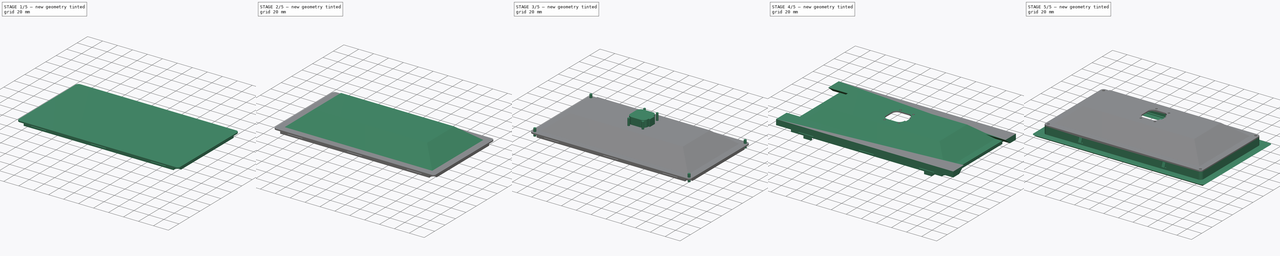
[diagram: build sequence overview — one tinted view per stage of 5, left to right]
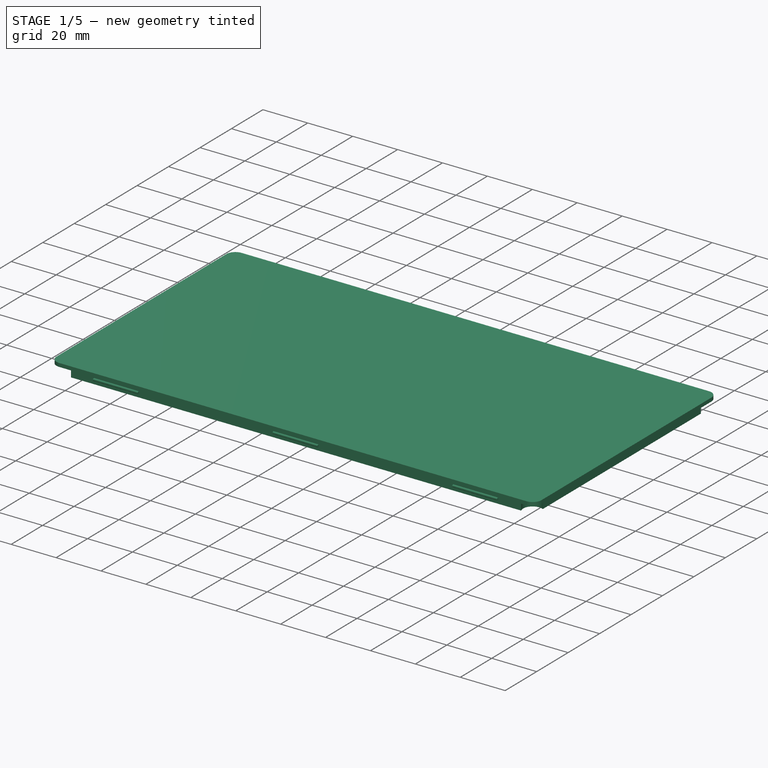
[diagram: stage 1 of 5 — iso view after this stage's code; geometry added in this stage tinted green]
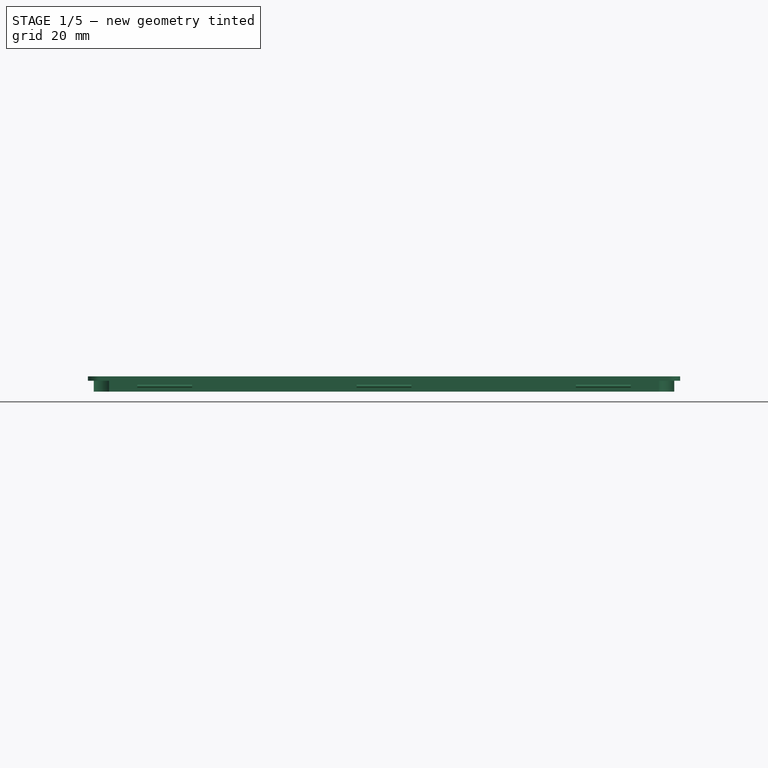
[diagram: stage 1 of 5 — front view after this stage's code; geometry added in this stage tinted green]
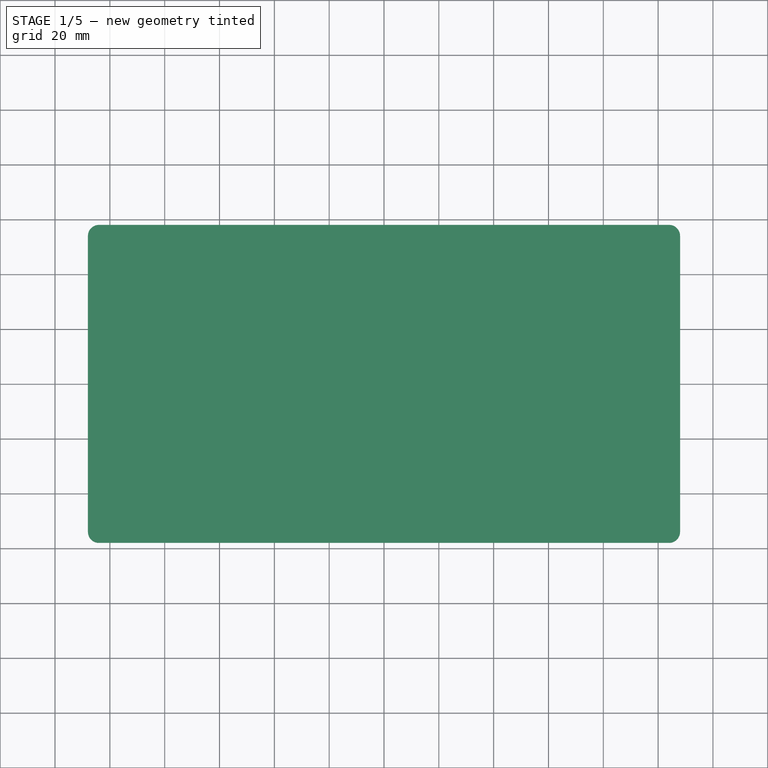
[diagram: stage 1 of 5 — top view after this stage's code; geometry added in this stage tinted green]
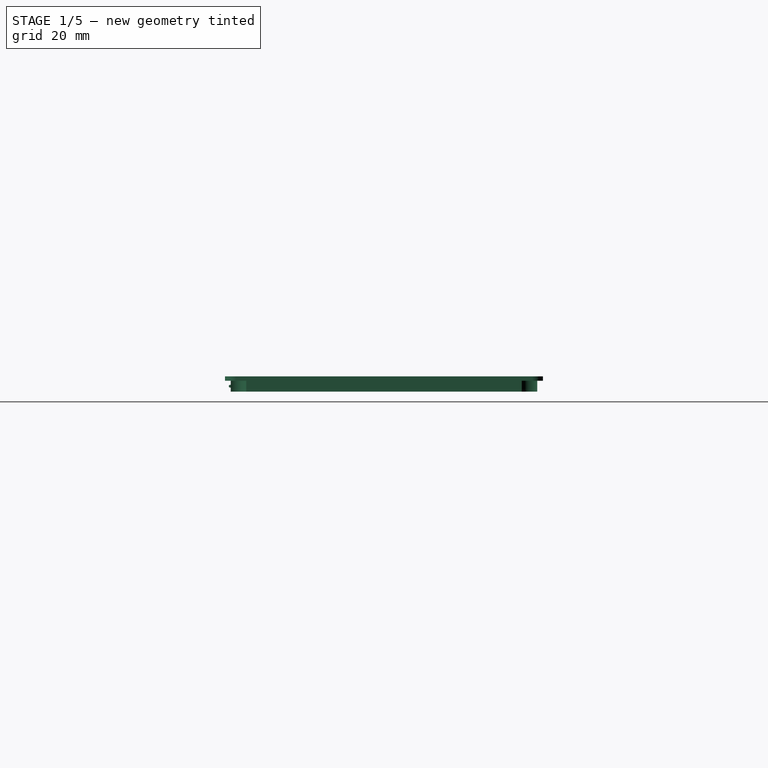
[diagram: stage 1 of 5 — right view after this stage's code; geometry added in this stage tinted green]
FCSTD DOCUMENT  (FreeCAD 0.16R6698 (Git))
Label: enclosure_back
License: All rights reserved
LicenseURL: http://en.wikipedia.org/wiki/All_rights_reserved
objects: Sketcher::SketchObject×9, PartDesign::Pad×8, Part::MultiFuse×4, Part::Chamfer×2, Part::FeaturePython×2, App::FeaturePython×2, PartDesign::Fillet×2, Part::Cut×2, Part::Feature×1, PartDesign::Pocket×1, Part::Cylinder×1, Part::Mirroring×1
note: 42 computed .brp shape members not serialized (recipe doc carries the construction recipe); baked Part::Feature solids carry a one-line shape summary decoded from their .brp

FEATURE [Part::Feature] Part__Feature  label="pcb"
  Placement = pos=(-23.86,3.5,-4.6) rot=(0,0,1;0rad)
  shape: bbox 87.31 x 61.33 x 37.48 mm, 5234 faces (baked)
FEATURE [Sketcher::SketchObject] Sketch
  sketch-geometry (8):
    g0: LineSegment StartX=-104 StartY=58 StartZ=0 EndX=104 EndY=58 EndZ=0
    g1: LineSegment StartX=108 StartY=54 StartZ=0 EndX=108 EndY=-54 EndZ=0
    g2: LineSegment StartX=104 StartY=-58 StartZ=0 EndX=-104 EndY=-58 EndZ=0
    g3: LineSegment StartX=-108 StartY=-54 StartZ=0 EndX=-108 EndY=54 EndZ=0
    g4: ArcOfCircle CenterX=104 CenterY=-54 CenterZ=0 NormalX=0 NormalY=0 NormalZ=1 Radius=4 StartAngle=4.71239 EndAngle=6.28319
    g5: ArcOfCircle CenterX=104 CenterY=54 CenterZ=0 NormalX=0 NormalY=0 NormalZ=1 Radius=4 StartAngle=0 EndAngle=1.5708
    g6: ArcOfCircle CenterX=-104 CenterY=54 CenterZ=0 NormalX=0 NormalY=0 NormalZ=1 Radius=4 StartAngle=1.5708 EndAngle=3.14159
    g7: ArcOfCircle CenterX=-104 CenterY=-54 CenterZ=0 NormalX=0 NormalY=0 NormalZ=1 Radius=4 StartAngle=3.14159 EndAngle=4.71239
  constraints (19):
    c: Horizontal(g0)
    c: Horizontal(g2)
    c: Vertical(g1)
    c: Vertical(g3)
    c: Tangent(g2,g4) = 1.5708
    c: Tangent(g1,g4) = 1.5708
    c: Tangent(g1,g5) = 1.5708
    c: Tangent(g0,g5) = 1.5708
    c: Tangent(g0,g6) = 1.5708
    c: Tangent(g3,g6) = 1.5708
    c: Tangent(g3,g7) = 1.5708
    c: Tangent(g2,g7) = 1.5708
    c: Equal(g7,g6)
    c: Equal(g6,g5)
    c: Symmetric(g3,g1,g-2)
    c: Symmetric(g2,g0,g-1)
    c: DistanceX(g3,g1) = 216
    c: DistanceY(g2,g0) = 116
    c: Radius(g6) = 4
FEATURE [PartDesign::Pad] Pad
  Length = 1.6
  Length2 = 100
  Sketch = -> Sketch
  Type = 0
FEATURE [Sketcher::SketchObject] Sketch003
  Placement = pos=(0,0,0) rot=(1,0,0;3.14159rad)
  sketch-geometry (16):
    g0: LineSegment StartX=-100.254 StartY=55.9 StartZ=0 EndX=100.254 EndY=55.9 EndZ=0
    g1: ArcOfCircle CenterX=104 CenterY=54 CenterZ=0 NormalX=0 NormalY=0 NormalZ=1 Radius=4.2 StartAngle=2.67216 EndAngle=5.18182
    g2: LineSegment StartX=105.9 StartY=50.2543 StartZ=0 EndX=105.9 EndY=-50.2543 EndZ=0
    g3: ArcOfCircle CenterX=104 CenterY=-54 CenterZ=0 NormalX=0 NormalY=0 NormalZ=1 Radius=4.2 StartAngle=1.10136 EndAngle=3.61103
    g4: LineSegment StartX=100.254 StartY=-55.9 StartZ=0 EndX=-100.254 EndY=-55.9 EndZ=0
    g5: ArcOfCircle CenterX=-104 CenterY=-54 CenterZ=0 NormalX=0 NormalY=0 NormalZ=1 Radius=4.2 StartAngle=5.81375 EndAngle=8.32341
    g6: LineSegment StartX=-105.9 StartY=-50.2543 StartZ=0 EndX=-105.9 EndY=50.2543 EndZ=0
    g7: ArcOfCircle CenterX=-104 CenterY=54 CenterZ=0 NormalX=0 NormalY=0 NormalZ=1 Radius=4.2 StartAngle=4.24296 EndAngle=6.75262
    g8: LineSegment StartX=-104.3 StartY=-48.2078 StartZ=0 EndX=-104.3 EndY=48.2078 EndZ=0
    g9: LineSegment StartX=-98.2078 StartY=54.3 StartZ=0 EndX=98.2078 EndY=54.3 EndZ=0
    g10: LineSegment StartX=104.3 StartY=48.2078 StartZ=0 EndX=104.3 EndY=-48.2078 EndZ=0
    g11: LineSegment StartX=98.2078 StartY=-54.3 StartZ=0 EndX=-98.2078 EndY=-54.3 EndZ=0
    g12: ArcOfCircle CenterX=-104 CenterY=-54 CenterZ=0 NormalX=0 NormalY=0 NormalZ=1 Radius=5.8 StartAngle=6.23144 EndAngle=7.90573
    g13: ArcOfCircle CenterX=104 CenterY=-54 CenterZ=0 NormalX=0 NormalY=0 NormalZ=1 Radius=5.8 StartAngle=1.51905 EndAngle=3.19334
    g14: ArcOfCircle CenterX=104 CenterY=54 CenterZ=0 NormalX=0 NormalY=0 NormalZ=1 Radius=5.8 StartAngle=3.08985 EndAngle=4.76414
    g15: ArcOfCircle CenterX=-104 CenterY=54 CenterZ=0 NormalX=0 NormalY=0 NormalZ=1 Radius=5.8 StartAngle=4.66064 EndAngle=6.33493
  constraints (46):
    c: Horizontal(g0)
    c: Coincident(g1,g2)
    c: Vertical(g2)
    c: Horizontal(g4)
    c: Coincident(g5,g6)
    c: Vertical(g6)
    c: Coincident(g7,g0)
    c: Symmetric(g7,g1,g-2)
    c: Symmetric(g1,g3,g-1)
    c: Symmetric(g5,g7,g-1)
    c: DistanceY(g5,g7) = 108
    c: Equal(g5,g7)
    c: Equal(g1,g3)
    c: Radius(g3) = 4.2
    c: DistanceX(g7,g1) = 208
    c: Coincident(g6,g7)
    c: Coincident(g2,g3)
    c: Coincident(g4,g5)
    c: Symmetric(g6,g1,g-2)
    c: Symmetric(g4,g0,g-1)
    c: DistanceX(g6,g1) = 211.8
    c: DistanceY(g4,g0) = 111.8
    c: Coincident(g0,g1)
    c: Coincident(g3,g4)
    c: Vertical(g8)
    c: Horizontal(g9)
    c: Vertical(g10)
    c: Horizontal(g11)
    c: Coincident(g12,g5)
    c: Coincident(g12,g11)
    c: Coincident(g8,g12)
    c: Coincident(g13,g3)
    c: Coincident(g13,g11)
    c: Coincident(g13,g10)
    c: Coincident(g14,g1)
    c: Coincident(g14,g9)
    c: Coincident(g14,g10)
    c: Coincident(g15,g7)
    c: Coincident(g15,g8)
    c: Coincident(g15,g9)
    c: DistanceX(g8,g10) = 208.6
    c: DistanceY(g11,g9) = 108.6
    c: Symmetric(g9,g11,g-1)
    c: Symmetric(g8,g10,g-2)
    c: Equal(g15,g14)
    c: Radius(g15) = 5.8
FEATURE [PartDesign::Pad] Pad002  label="seal_ring_pad"
  Length = 4
  Length2 = 100
  Placement = pos=(0,0,0) rot=(1,0,0;3.14159rad)
  Sketch = -> Sketch003
  Type = 0
FEATURE [Sketcher::SketchObject] Sketch009
  Placement = pos=(0,55.9,0) rot=(0,0.707107,-0.707107;3.14159rad)
  sketch-geometry (12):
    g0: LineSegment StartX=-90 StartY=2.5 StartZ=0 EndX=-70 EndY=2.5 EndZ=0
    g1: LineSegment StartX=-70 StartY=2.5 StartZ=0 EndX=-70 EndY=1.5 EndZ=0
    g2: LineSegment StartX=-70 StartY=1.5 StartZ=0 EndX=-90 EndY=1.5 EndZ=0
    g3: LineSegment StartX=-90 StartY=1.5 StartZ=0 EndX=-90 EndY=2.5 EndZ=0
    g4: LineSegment StartX=-10 StartY=2.5 StartZ=0 EndX=10 EndY=2.5 EndZ=0
    g5: LineSegment StartX=10 StartY=2.5 StartZ=0 EndX=10 EndY=1.5 EndZ=0
    g6: LineSegment StartX=10 StartY=1.5 StartZ=0 EndX=-10 EndY=1.5 EndZ=0
    g7: LineSegment StartX=-10 StartY=1.5 StartZ=0 EndX=-10 EndY=2.5 EndZ=0
    g8: LineSegment StartX=70 StartY=2.5 StartZ=0 EndX=90 EndY=2.5 EndZ=0
    g9: LineSegment StartX=90 StartY=2.5 StartZ=0 EndX=90 EndY=1.5 EndZ=0
    g10: LineSegment StartX=90 StartY=1.5 StartZ=0 EndX=70 EndY=1.5 EndZ=0
    g11: LineSegment StartX=70 StartY=1.5 StartZ=0 EndX=70 EndY=2.5 EndZ=0
  constraints (33):
    c: Coincident(g0,g1)
    c: Coincident(g1,g2)
    c: Coincident(g2,g3)
    c: Coincident(g3,g0)
    c: Horizontal(g0)
    c: Horizontal(g2)
    c: Vertical(g1)
    c: Vertical(g3)
    c: Coincident(g4,g5)
    c: Coincident(g5,g6)
    c: Coincident(g6,g7)
    c: Coincident(g7,g4)
    c: Horizontal(g4)
    c: Horizontal(g6)
    c: Vertical(g5)
    c: Vertical(g7)
    c: Coincident(g8,g9)
    c: Coincident(g9,g10)
    c: Coincident(g10,g11)
    c: Coincident(g11,g8)
    c: Horizontal(g8)
    c: Horizontal(g10)
    c: Vertical(g9)
    c: Vertical(g11)
    c: Equal(g8,g4)
    c: Equal(g4,g0)
    c: Equal(g1,g7)
    c: Equal(g7,g11)
    c: Symmetric(g8,g0,g-2)
    c: Symmetric(g4,g4,g-2)
    c: DistanceY(g3,g3) = 1
    c: DistanceX(g4,g4) = 20
    c: DistanceX(g2,g9) = 180
FEATURE [PartDesign::Pad] Pad007  label="attach_clips"
  Length = 0.7
  Length2 = 100
  Placement = pos=(0,55.9,0) rot=(0,0.707107,-0.707107;3.14159rad)
  Reversed = true
  Sketch = -> Sketch009
  Type = 0
FEATURE [PartDesign::Fillet] Fillet001
  Base = -> Pad007 [Edge16,Edge22,Edge4,Edge10,Edge34,Edge28]
  Placement = pos=(0,55.9,0) rot=(0,0.707107,-0.707107;3.14159rad)
  Radius = 0.4
FEATURE [Part::Mirroring] Part__Mirroring  label="attach_clips_mirror"
  Base = (0,0,0)
  Normal = (0,1,0)
  Source = -> Fillet001
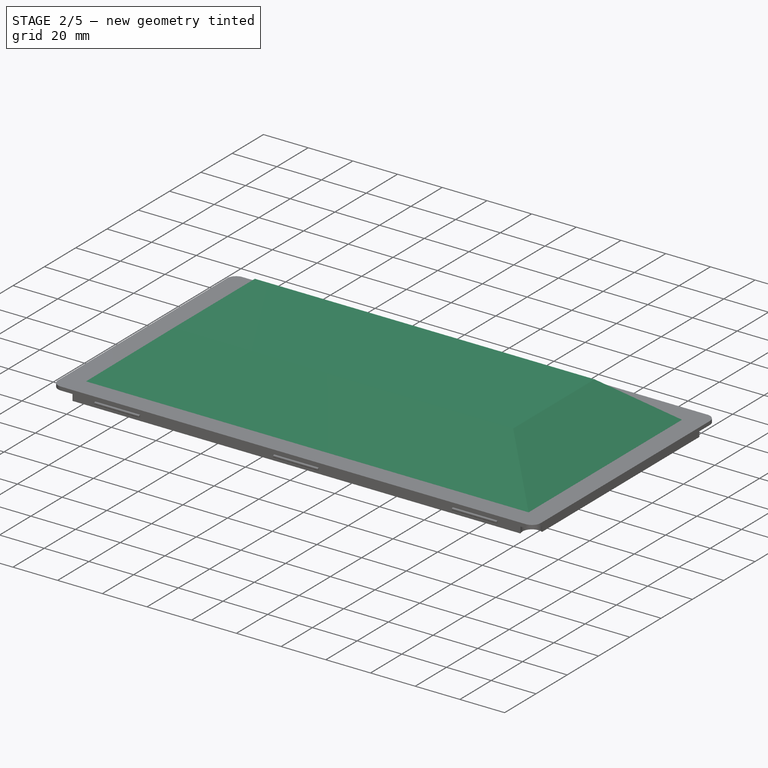
[diagram: stage 2 of 5 — iso view after this stage's code; geometry added in this stage tinted green]
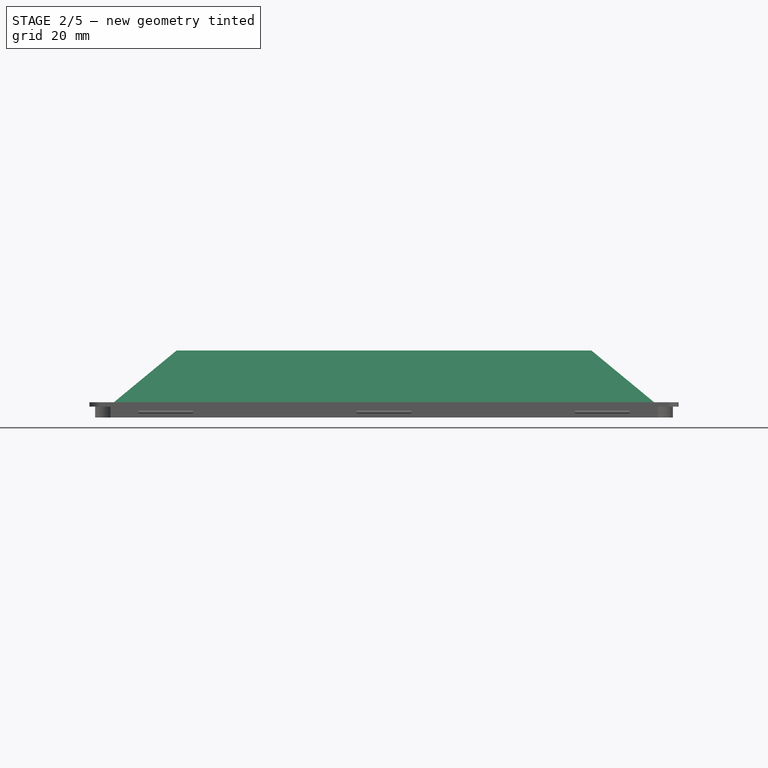
[diagram: stage 2 of 5 — front view after this stage's code; geometry added in this stage tinted green]
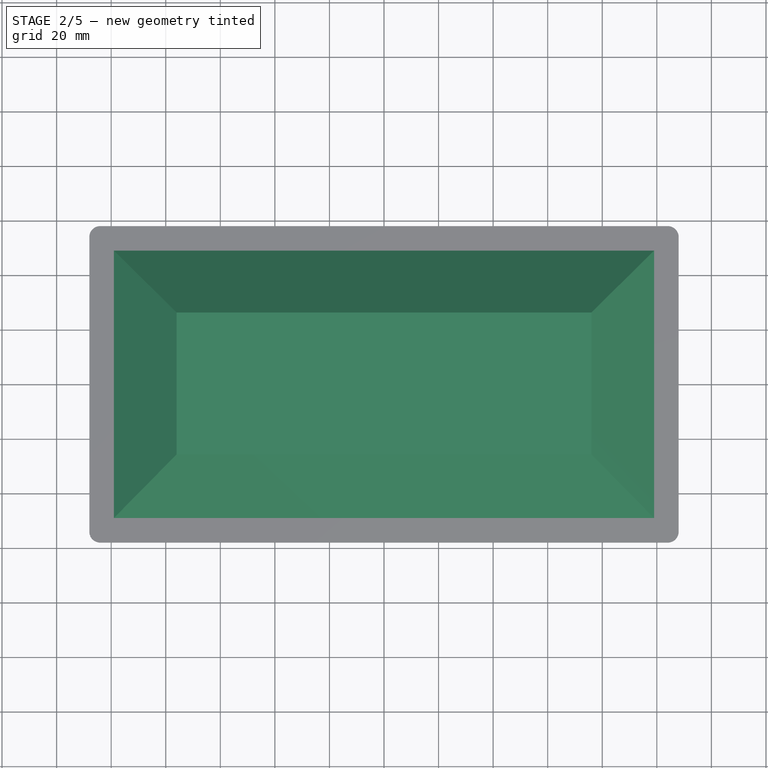
[diagram: stage 2 of 5 — top view after this stage's code; geometry added in this stage tinted green]
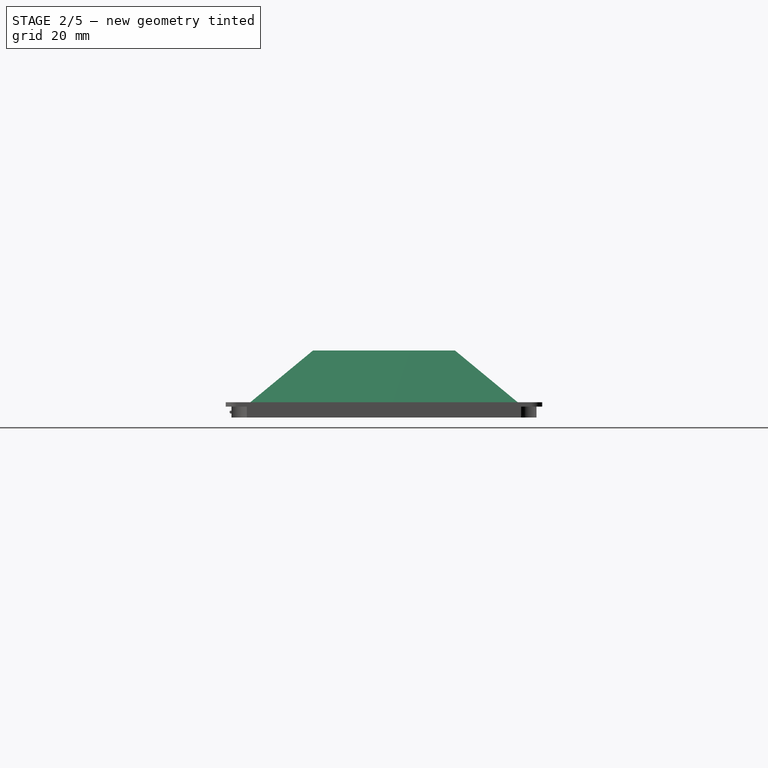
[diagram: stage 2 of 5 — right view after this stage's code; geometry added in this stage tinted green]
FEATURE [Sketcher::SketchObject] Sketch001
  Placement = pos=(0,0,1.6) rot=(0,0,1;0rad)
  Support = -> Pad [Face10]
  sketch-geometry (4):
    g0: LineSegment StartX=-99 StartY=49 StartZ=0 EndX=99 EndY=49 EndZ=0
    g1: LineSegment StartX=99 StartY=49 StartZ=0 EndX=99 EndY=-49 EndZ=0
    g2: LineSegment StartX=99 StartY=-49 StartZ=0 EndX=-99 EndY=-49 EndZ=0
    g3: LineSegment StartX=-99 StartY=-49 StartZ=0 EndX=-99 EndY=49 EndZ=0
  constraints (12):
    c: Coincident(g0,g1)
    c: Coincident(g1,g2)
    c: Coincident(g2,g3)
    c: Coincident(g3,g0)
    c: Horizontal(g0)
    c: Horizontal(g2)
    c: Vertical(g1)
    c: Vertical(g3)
    c: Symmetric(g1,g0,g-1)
    c: Symmetric(g0,g0,g-2)
    c: DistanceX(g0,g0) = 198
    c: DistanceY(g3,g3) = 98
FEATURE [PartDesign::Pad] Pad001
  Length = 19
  Length2 = 100
  Sketch = -> Sketch001
  Type = 0
FEATURE [Part::Chamfer] Chamfer
  Base = -> Pad001
  Edges = 4 edges: [Edge30 r1=18.99 r2=23,Edge33 r1=18.99 r2=23,Edge35 r1=18.99 r2=23,Edge36 r1=18.99 r2=23]
FEATURE [Sketcher::SketchObject] Sketch002
  Placement = pos=(0,0,0) rot=(1,0,0;3.14159rad)
  Support = -> Chamfer [Face19]
  sketch-geometry (4):
    g0: LineSegment StartX=-75 StartY=25 StartZ=0 EndX=75 EndY=25 EndZ=0
    g1: LineSegment StartX=75 StartY=25 StartZ=0 EndX=75 EndY=-25 EndZ=0
    g2: LineSegment StartX=75 StartY=-25 StartZ=0 EndX=-75 EndY=-25 EndZ=0
    g3: LineSegment StartX=-75 StartY=-25 StartZ=0 EndX=-75 EndY=25 EndZ=0
  constraints (12):
    c: Coincident(g0,g1)
    c: Coincident(g1,g2)
    c: Coincident(g2,g3)
    c: Coincident(g3,g0)
    c: Horizontal(g0)
    c: Horizontal(g2)
    c: Vertical(g1)
    c: Vertical(g3)
    c: Symmetric(g1,g2,g-2)
    c: Symmetric(g2,g0,g-1)
    c: DistanceX(g0,g0) = 150
    c: DistanceY(g3,g3) = 50
FEATURE [PartDesign::Pocket] Pocket
  Length = 19
  Sketch = -> Sketch002
  Type = 0
FEATURE [Part::Chamfer] Chamfer001
  Base = -> Pocket
  Edges = 4 edges: [Edge45 r1=23 r2=18.99,Edge46 r1=23 r2=18.99,Edge47 r1=23 r2=18.99,Edge48 r1=23 r2=18.99]
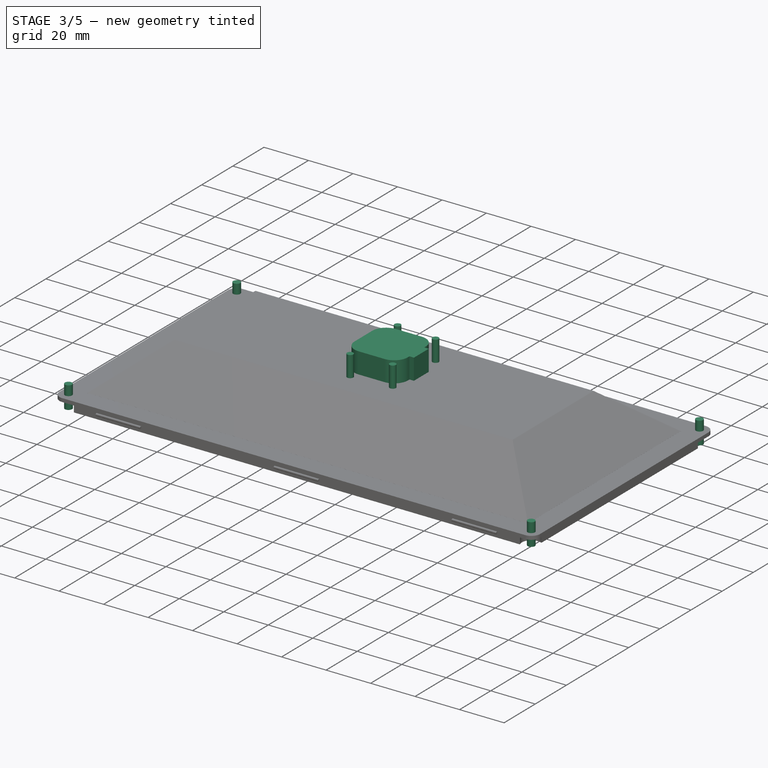
[diagram: stage 3 of 5 — iso view after this stage's code; geometry added in this stage tinted green]
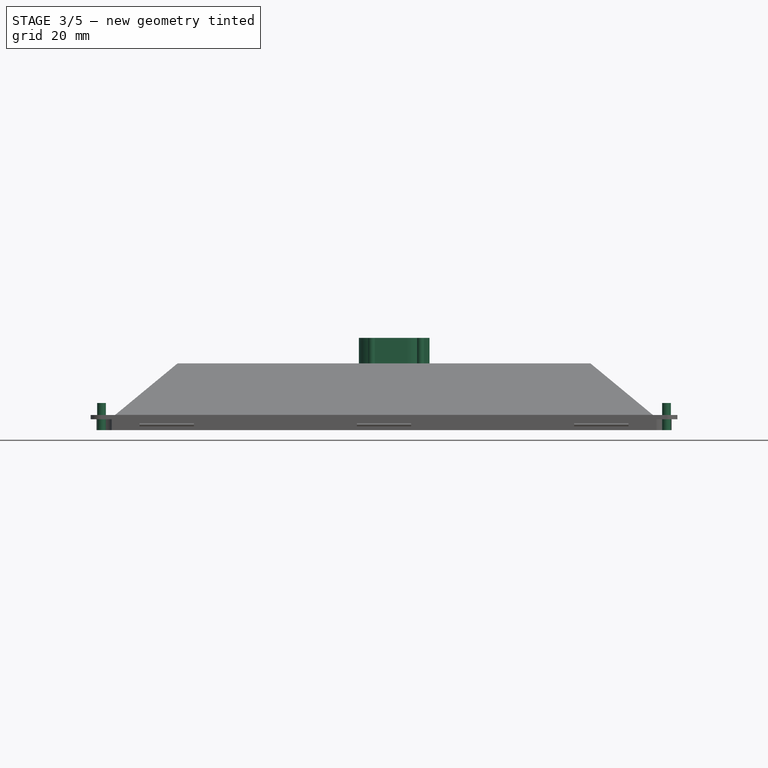
[diagram: stage 3 of 5 — front view after this stage's code; geometry added in this stage tinted green]
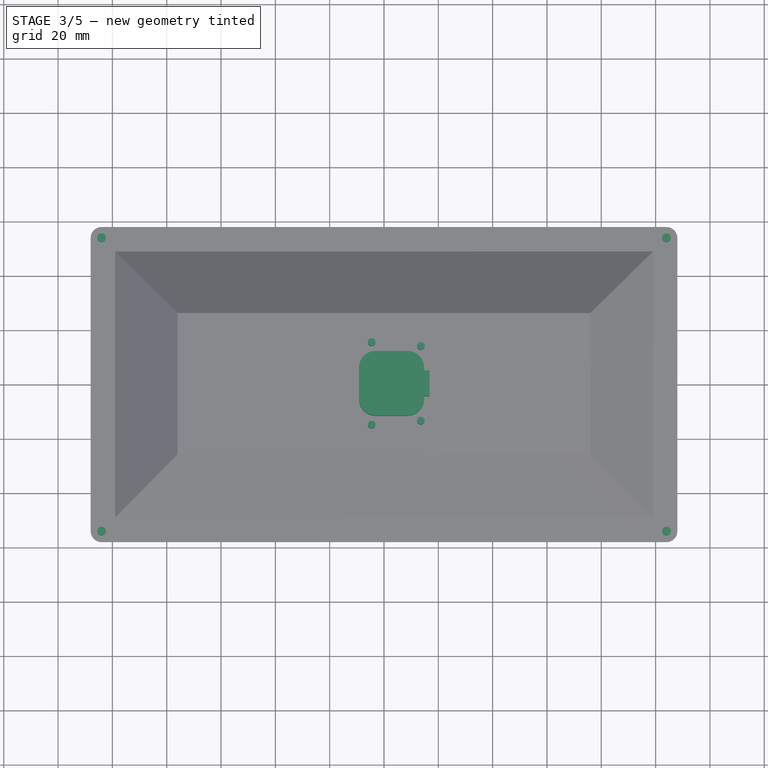
[diagram: stage 3 of 5 — top view after this stage's code; geometry added in this stage tinted green]
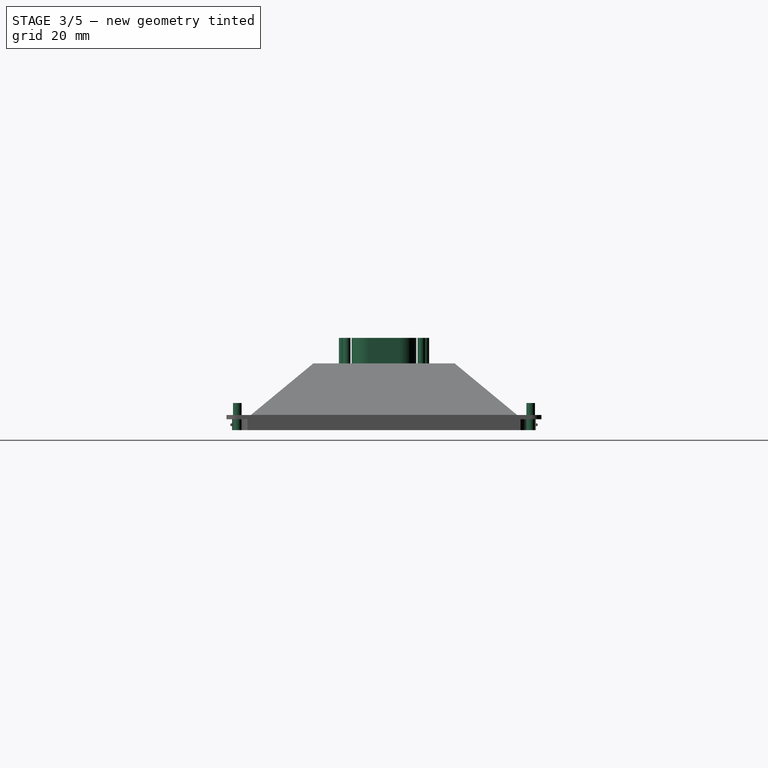
[diagram: stage 3 of 5 — right view after this stage's code; geometry added in this stage tinted green]
FEATURE [Part::Cylinder] Cylinder  label="bolt_hole"
  Angle = 360
  Height = 10
  Placement = pos=(104,54,-4) rot=(0,0,1;0rad)
  Radius = 1.6
FEATURE [Part::FeaturePython] Array  label="bolt_holes"  # Draft array (typed FeaturePython)
  Angle = 360
  ArrayType = 0
  Axis = (0,0,1)
  Base = -> Cylinder
  Center = (0,0,0)
  Fuse = false
  IntervalAxis = (0,0,0)
  IntervalX = (-208,0,0)
  IntervalY = (0,-108,0)
  IntervalZ = (0,0,0)
  NumberPolar = 1
  NumberX = 2
  NumberY = 2
  NumberZ = 1
FEATURE [Sketcher::SketchObject] Sketch005
  sketch-geometry (16):
    g0: LineSegment StartX=-3.03489 StartY=11.9 StartZ=0 EndX=8.56511 EndY=11.9 EndZ=0
    g1: LineSegment StartX=8.56511 StartY=-11.9 StartZ=0 EndX=-3.03489 EndY=-11.9 EndZ=0
    g2: LineSegment StartX=-9.23489 StartY=-5.7 StartZ=0 EndX=-9.23489 EndY=5.7 EndZ=0
    g3: ArcOfCircle CenterX=8.56511 CenterY=-5.7 CenterZ=0 NormalX=0 NormalY=0 NormalZ=1 Radius=6.2 StartAngle=4.71239 EndAngle=6.28319
    g4: ArcOfCircle CenterX=-3.03489 CenterY=-5.7 CenterZ=0 NormalX=0 NormalY=0 NormalZ=1 Radius=6.2 StartAngle=3.14159 EndAngle=4.71239
    g5: ArcOfCircle CenterX=-3.03489 CenterY=5.7 CenterZ=0 NormalX=0 NormalY=0 NormalZ=1 Radius=6.2 StartAngle=1.5708 EndAngle=3.14159
    g6: ArcOfCircle CenterX=8.56511 CenterY=5.7 CenterZ=0 NormalX=0 NormalY=0 NormalZ=1 Radius=6.2 StartAngle=0 EndAngle=1.5708
    g7: LineSegment StartX=14.7651 StartY=5.7 StartZ=0 EndX=14.7651 EndY=4.75 EndZ=0
    g8: LineSegment StartX=14.7651 StartY=4.75 StartZ=0 EndX=16.7651 EndY=4.75 EndZ=0
    g9: LineSegment StartX=16.7651 StartY=4.75 StartZ=0 EndX=16.7651 EndY=-4.75 EndZ=0
    g10: LineSegment StartX=16.7651 StartY=-4.75 StartZ=0 EndX=14.7651 EndY=-4.75 EndZ=0
    g11: LineSegment StartX=14.7651 StartY=-4.75 StartZ=0 EndX=14.7651 EndY=-5.7 EndZ=0
    g12: Circle CenterX=-4.54666 CenterY=15.2227 CenterZ=0 NormalX=0 NormalY=0 NormalZ=1 Radius=1.4
    g13: Circle CenterX=13.5465 CenterY=13.751 CenterZ=0 NormalX=0 NormalY=0 NormalZ=1 Radius=1.4
    g14: Circle CenterX=13.5465 CenterY=-13.751 CenterZ=0 NormalX=0 NormalY=0 NormalZ=1 Radius=1.4
    g15: Circle CenterX=-4.54666 CenterY=-15.2227 CenterZ=0 NormalX=0 NormalY=0 NormalZ=1 Radius=1.4
  constraints (39):
    c: Horizontal(g0)
    c: Horizontal(g1)
    c: Vertical(g2)
    c: Tangent(g1,g3) = 1.5708
    c: Tangent(g1,g4) = 1.5708
    c: Tangent(g2,g4) = 1.5708
    c: Tangent(g2,g5) = 1.5708
    c: Tangent(g0,g5) = 1.5708
    c: Tangent(g0,g6) = 1.5708
    c: Tangent(g6,g7) = 1.5708
    c: Coincident(g7,g8)
    c: Horizontal(g8)
    c: Perpendicular(g8,g9) = 4.71239
    c: Coincident(g9,g10)
    c: Horizontal(g10)
    c: Coincident(g10,g11)
    c: Coincident(g11,g3)
    c: Vertical(g11)
    c: Tangent(g3,g11)
    c: Symmetric(g3,g6,g-1)
    c: Symmetric(g5,g4,g-1)
    c: Vertical(g7)
    c: Equal(g3,g4)
    c: Symmetric(g8,g9,g-1)
    c: DistanceY(g9,g9) = 9.5
    c: DistanceX(g2,g6) = 24
    c: DistanceY(g1,g0) = 23.8
    c: Radius(g6) = 6.2
    c: DistanceX(g10,g10) = 2
    c: Equal(g15,g14)
    c: Equal(g14,g13)
    c: Equal(g13,g12)
    c: Symmetric(g12,g15,g-1)
    c: Symmetric(g14,g13,g-1)
    c: Radius(g13) = 1.4
    c: DistanceX(g12,g13) = 18.0932
    c: DistanceX(g2,g12) = 4.68823
    c: DistanceY(g15,g12) = 30.4455
    c: DistanceY(g14,g13) = 27.502
FEATURE [PartDesign::Pad] Pad003  label="ampseal_hole"
  Length = 30
  Length2 = 100
  Sketch = -> Sketch005
  Type = 0
FEATURE [Part::MultiFuse] Fusion  label="connector_&_screw_holes"
  Shapes = -> [Pad003,Array]
FEATURE [Part::MultiFuse] Fusion003
  Shapes = -> [Fillet001,Part__Mirroring,Chamfer001,Pad002]
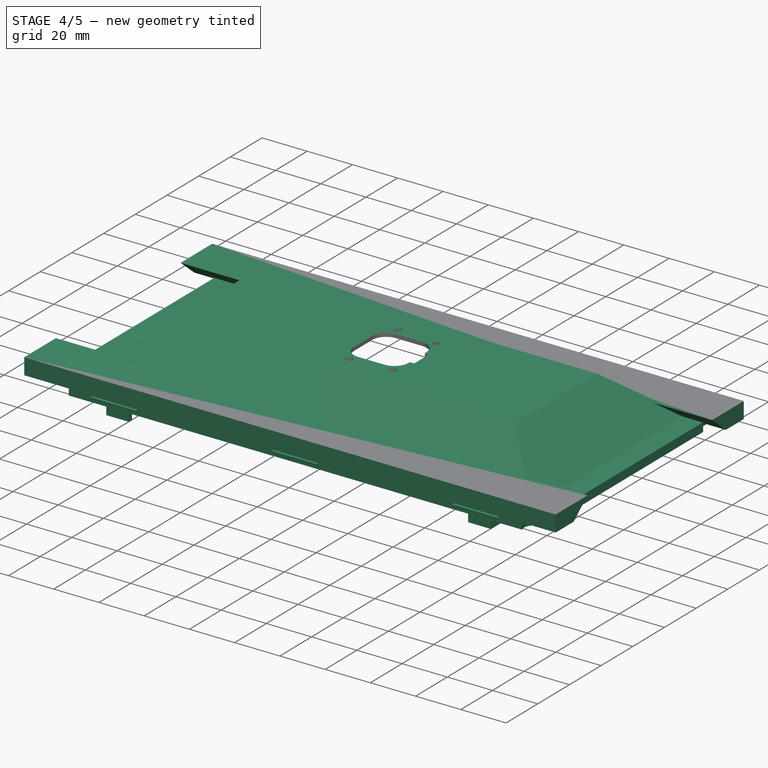
[diagram: stage 4 of 5 — iso view after this stage's code; geometry added in this stage tinted green]
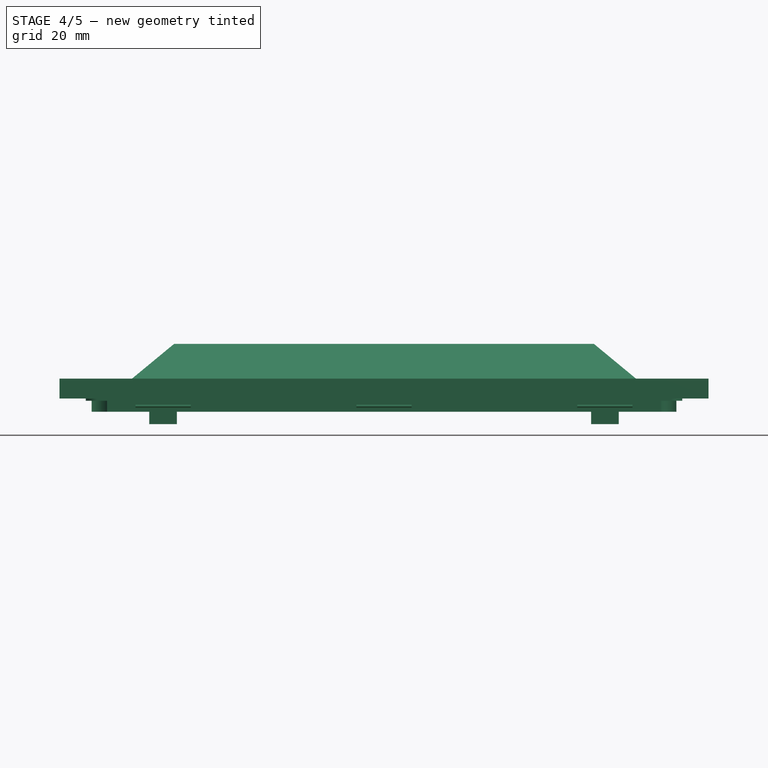
[diagram: stage 4 of 5 — front view after this stage's code; geometry added in this stage tinted green]
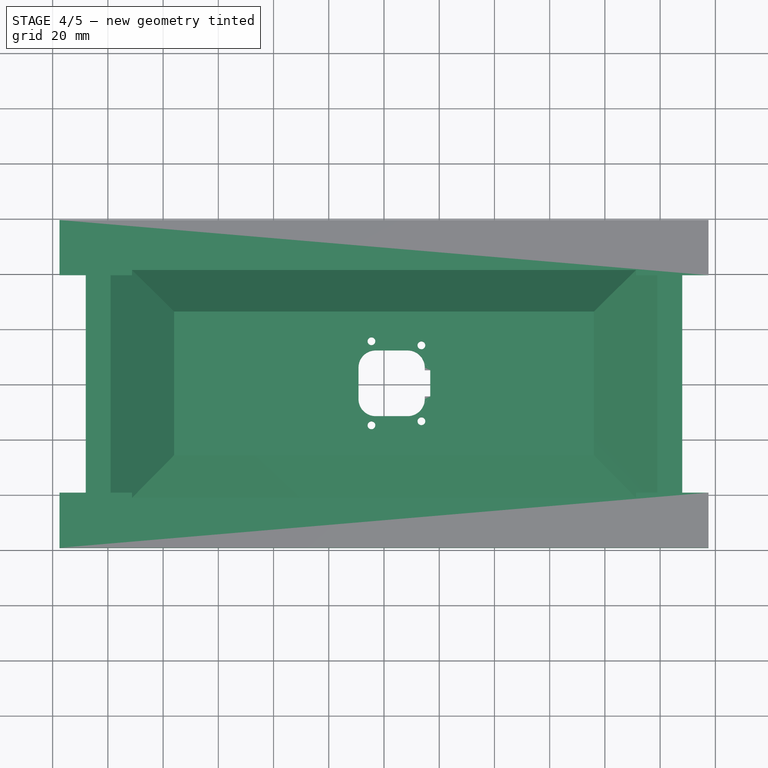
[diagram: stage 4 of 5 — top view after this stage's code; geometry added in this stage tinted green]
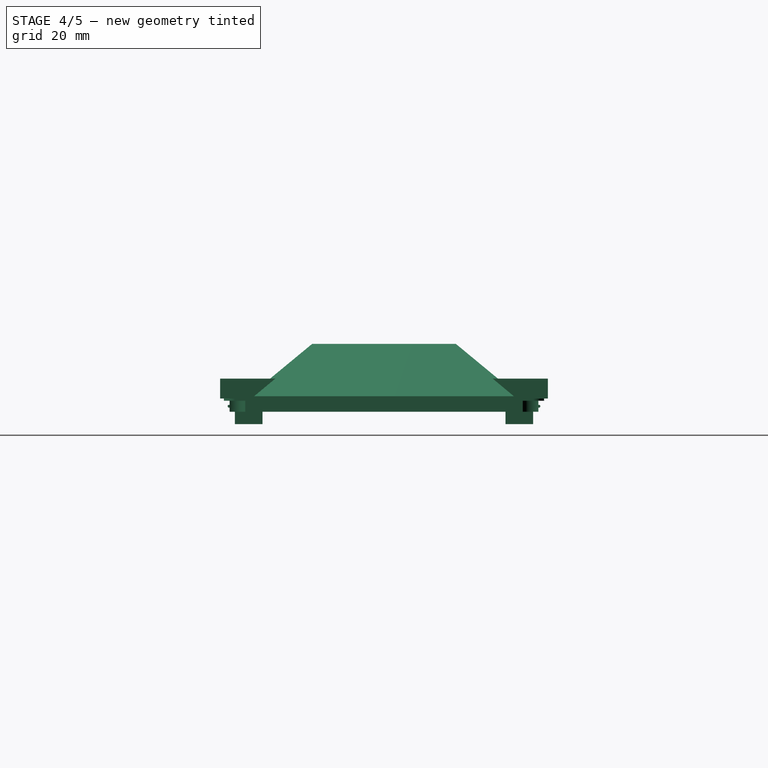
[diagram: stage 4 of 5 — right view after this stage's code; geometry added in this stage tinted green]
FEATURE [App::FeaturePython] circularEdgeConstraint01  label="circularEdgeConstraint01__enclosure_front_01"  # a2plus constraint (typed FeaturePython)
  Object1 = Cut
  Object2 = enclosure_front_01
  SubElement1 = Edge57
  SubElement2 = Edge71
  Type = circularEdge
  directionConstraint = 0
  lockRotation = false
  offset = 0
FEATURE [App::FeaturePython] circularEdgeConstraint01_mirror  label="circularEdgeConstraint01__Cut"  # a2plus constraint (typed FeaturePython)
  Object1 = Cut
  Object2 = enclosure_front_01
  SubElement1 = Edge57
  SubElement2 = Edge71
  Type = circularEdge
  directionConstraint = 0
  lockRotation = false
  offset = 0
FEATURE [Sketcher::SketchObject] Sketch006
  Placement = pos=(0,0,-16.5) rot=(0,0,1;0rad)
  sketch-geometry (24):
    g0: LineSegment StartX=-75 StartY=52 StartZ=0 EndX=-75 EndY=54 EndZ=0
    g1: LineSegment StartX=-75 StartY=54 StartZ=0 EndX=-85 EndY=54 EndZ=0
    g2: LineSegment StartX=-85 StartY=54 StartZ=0 EndX=-85 EndY=44 EndZ=0
    g3: LineSegment StartX=-85 StartY=44 StartZ=0 EndX=-83 EndY=44 EndZ=0
    g4: LineSegment StartX=-83 StartY=44 StartZ=0 EndX=-83 EndY=52.5 EndZ=0
    g5: LineSegment StartX=-83 StartY=52.5 StartZ=0 EndX=-75 EndY=52 EndZ=0
    g6: LineSegment StartX=75 StartY=52 StartZ=0 EndX=75 EndY=54 EndZ=0
    g7: LineSegment StartX=75 StartY=54 StartZ=0 EndX=85 EndY=54 EndZ=0
    g8: LineSegment StartX=85 StartY=54 StartZ=0 EndX=85 EndY=44 EndZ=0
    g9: LineSegment StartX=85 StartY=44 StartZ=0 EndX=83 EndY=44 EndZ=0
    g10: LineSegment StartX=83 StartY=44 StartZ=0 EndX=83 EndY=52.5 EndZ=0
    g11: LineSegment StartX=83 StartY=52.5 StartZ=0 EndX=75 EndY=52 EndZ=0
    g12: LineSegment StartX=-75 StartY=-52 StartZ=0 EndX=-75 EndY=-54 EndZ=0
    g13: LineSegment StartX=-75 StartY=-54 StartZ=0 EndX=-85 EndY=-54 EndZ=0
    g14: LineSegment StartX=-85 StartY=-54 StartZ=0 EndX=-85 EndY=-44 EndZ=0
    g15: LineSegment StartX=-85 StartY=-44 StartZ=0 EndX=-83 EndY=-44 EndZ=0
    g16: LineSegment StartX=-83 StartY=-44 StartZ=0 EndX=-83 EndY=-52.5 EndZ=0
    g17: LineSegment StartX=-83 StartY=-52.5 StartZ=0 EndX=-75 EndY=-52 EndZ=0
    g18: LineSegment StartX=75 StartY=-52 StartZ=0 EndX=75 EndY=-54 EndZ=0
    g19: LineSegment StartX=75 StartY=-54 StartZ=0 EndX=85 EndY=-54 EndZ=0
    g20: LineSegment StartX=85 StartY=-54 StartZ=0 EndX=85 EndY=-44 EndZ=0
    g21: LineSegment StartX=85 StartY=-44 StartZ=0 EndX=83 EndY=-44 EndZ=0
    g22: LineSegment StartX=83 StartY=-44 StartZ=0 EndX=83 EndY=-52.5 EndZ=0
    g23: LineSegment StartX=83 StartY=-52.5 StartZ=0 EndX=75 EndY=-52 EndZ=0
  constraints (61):
    c: Vertical(g0)
    c: Coincident(g0,g1)
    c: Horizontal(g1)
    c: Coincident(g1,g2)
    c: Vertical(g2)
    c: Coincident(g2,g3)
    c: Horizontal(g3)
    c: Coincident(g3,g4)
    c: Coincident(g4,g5)
    c: Coincident(g5,g0)
    c: DistanceY(g0,g0) = 2
    c: DistanceX(g3,g3) = 2
    c: DistanceY(g2,g2) = 10
    c: DistanceX(g1,g1) = 10
    c: Vertical(g6)
    c: Coincident(g6,g7)
    c: Horizontal(g7)
    c: Coincident(g7,g8)
    c: Vertical(g8)
    c: Coincident(g8,g9)
    c: Horizontal(g9)
    c: Coincident(g9,g10)
    c: Coincident(g10,g11)
    c: Coincident(g11,g6)
    c: DistanceX(g9,g9) = 2
    c: DistanceY(g6,g6) = 2
    c: DistanceX(g7,g7) = 10
    c: DistanceY(g8,g8) = 10
    c: Vertical(g12)
    c: Coincident(g12,g13)
    c: Horizontal(g13)
    c: Coincident(g13,g14)
    c: Vertical(g14)
    c: Coincident(g14,g15)
    c: Horizontal(g15)
    c: Coincident(g15,g16)
    c: Coincident(g16,g17)
    c: Coincident(g17,g12)
    c: Vertical(g18)
    c: Coincident(g18,g19)
    c: Horizontal(g19)
    c: Coincident(g19,g20)
    c: Vertical(g20)
    c: Coincident(g20,g21)
    c: Horizontal(g21)
    c: Coincident(g21,g22)
    c: Coincident(g22,g23)
    c: Coincident(g23,g18)
    c: DistanceX(g15,g15) = 2
    c: DistanceY(g12,g12) = 2
    c: DistanceX(g13,g13) = 10
    c: DistanceY(g14,g14) = 10
    c: DistanceY(g18,g18) = 2
    c: DistanceX(g19,g19) = 10
    c: DistanceY(g20,g20) = 10
    c: DistanceX(g21,g21) = 2
    c: Symmetric(g8,g20,g-1)
    c: DistanceX(g15,g21) = 166
    c: DistanceY(g12,g0) = 104
    c: Symmetric(g18,g12,g-2)
    c: Symmetric(g15,g3,g-1)
FEATURE [PartDesign::Pad] Pad004
  Length = 15
  Length2 = 100
  Placement = pos=(0,0,-16.5) rot=(0,0,1;0rad)
  Sketch = -> Sketch006
  Type = 0
FEATURE [Sketcher::SketchObject] Sketch007
  Placement = pos=(0,0,-13) rot=(1,0,0;3.14159rad)
  sketch-geometry (12):
    g0: LineSegment StartX=-75 StartY=52.5 StartZ=0 EndX=-83 EndY=52.5 EndZ=0
    g1: LineSegment StartX=-83 StartY=52.5 StartZ=0 EndX=-83 EndY=44.5 EndZ=0
    g2: LineSegment StartX=-83 StartY=44.5 StartZ=0 EndX=-75 EndY=52.5 EndZ=0
    g3: LineSegment StartX=-83 StartY=-52.5 StartZ=0 EndX=-83 EndY=-44.5 EndZ=0
    g4: LineSegment StartX=-83 StartY=-44.5 StartZ=0 EndX=-75 EndY=-52.5 EndZ=0
    g5: LineSegment StartX=-75 StartY=-52.5 StartZ=0 EndX=-83 EndY=-52.5 EndZ=0
    g6: LineSegment StartX=75 StartY=-52.5 StartZ=0 EndX=83 EndY=-52.5 EndZ=0
    g7: LineSegment StartX=83 StartY=-52.5 StartZ=0 EndX=83 EndY=-44.5 EndZ=0
    g8: LineSegment StartX=83 StartY=-44.5 StartZ=0 EndX=75 EndY=-52.5 EndZ=0
    g9: LineSegment StartX=75 StartY=52.5 StartZ=0 EndX=83 EndY=44.5 EndZ=0
    g10: LineSegment StartX=83 StartY=44.5 StartZ=0 EndX=83 EndY=52.5 EndZ=0
    g11: LineSegment StartX=83 StartY=52.5 StartZ=0 EndX=75 EndY=52.5 EndZ=0
  constraints (14):
    c: Coincident(g0,g1)
    c: Coincident(g1,g2)
    c: Coincident(g2,g0)
    c: Coincident(g3,g4)
    c: Coincident(g4,g5)
    c: Coincident(g5,g3)
    c: Horizontal(g6)
    c: Coincident(g6,g7)
    c: Vertical(g7)
    c: Coincident(g7,g8)
    c: Coincident(g8,g6)
    c: Coincident(g9,g10)
    c: Coincident(g10,g11)
    c: Coincident(g11,g9)
FEATURE [PartDesign::Pad] Pad005
  Length = 2
  Length2 = 100
  Placement = pos=(0,0,-13) rot=(1,0,0;3.14159rad)
  Reversed = true
  Sketch = -> Sketch007
  Type = 0
FEATURE [Sketcher::SketchObject] Sketch008
  Placement = pos=(0,0,0) rot=(0.57735,0.57735,0.57735;2.0944rad)
  sketch-geometry (8):
    g0: LineSegment StartX=-59.3683 StartY=-7.20358 StartZ=0 EndX=-48.0323 EndY=-7.20358 EndZ=0
    g1: LineSegment StartX=-48.0323 StartY=-7.20358 StartZ=0 EndX=-39.374 EndY=0 EndZ=0
    g2: LineSegment StartX=-39.374 StartY=0 StartZ=0 EndX=-59.3683 EndY=0 EndZ=0
    g3: LineSegment StartX=-59.3683 StartY=0 StartZ=0 EndX=-59.3683 EndY=-7.20358 EndZ=0
    g4: LineSegment StartX=59.3683 StartY=-7.20358 StartZ=0 EndX=48.0323 EndY=-7.20358 EndZ=0
    g5: LineSegment StartX=48.0323 StartY=-7.20358 StartZ=0 EndX=39.374 EndY=0 EndZ=0
    g6: LineSegment StartX=39.374 StartY=0 StartZ=0 EndX=59.3683 EndY=0 EndZ=0
    g7: LineSegment StartX=59.3683 StartY=0 StartZ=0 EndX=59.3683 EndY=-7.20358 EndZ=0
  constraints (15):
    c: Horizontal(g0)
    c: Coincident(g0,g1)
    c: PointOnObject(g1,g-1)
    c: Coincident(g1,g2)
    c: Horizontal(g2)
    c: Coincident(g2,g3)
    c: Coincident(g3,g0)
    c: Vertical(g3)
    c: Horizontal(g4)
    c: Coincident(g4,g5)
    c: Coincident(g5,g6)
    c: Horizontal(g6)
    c: Coincident(g6,g7)
    c: Coincident(g7,g4)
    c: Vertical(g7)
FEATURE [PartDesign::Pad] Pad006  label="dspl_holder_cut"
  Length = 235
  Length2 = 100
  Midplane = true
  Placement = pos=(0,0,0) rot=(0.57735,0.57735,0.57735;2.0944rad)
  Sketch = -> Sketch008
  Type = 0
FEATURE [Part::Cut] Cut
  Base = -> Fusion003
  Placement = pos=(0,0,-8) rot=(0,0,1;0rad)
  Tool = -> Fusion
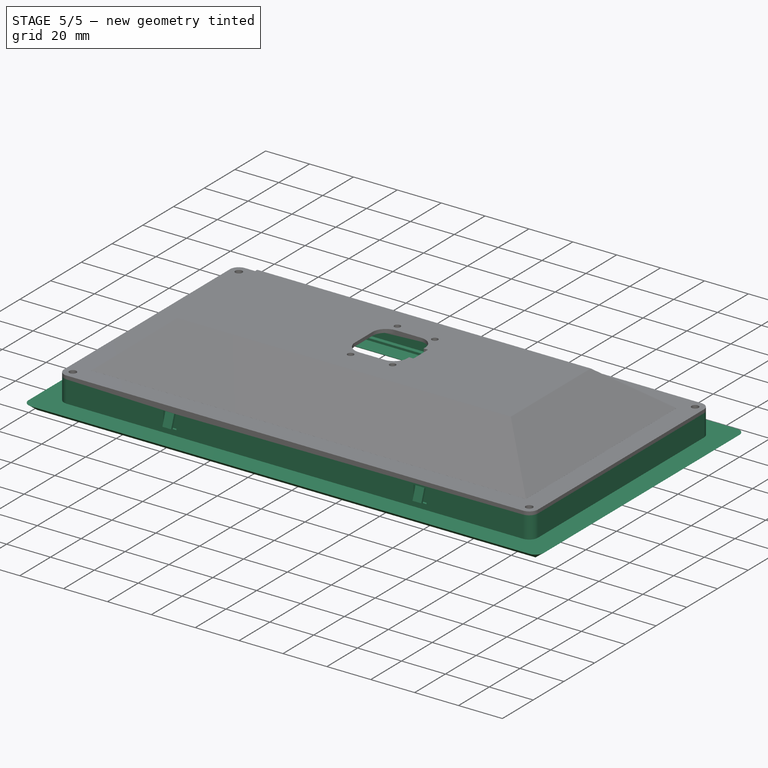
[diagram: stage 5 of 5 — iso view after this stage's code; geometry added in this stage tinted green]
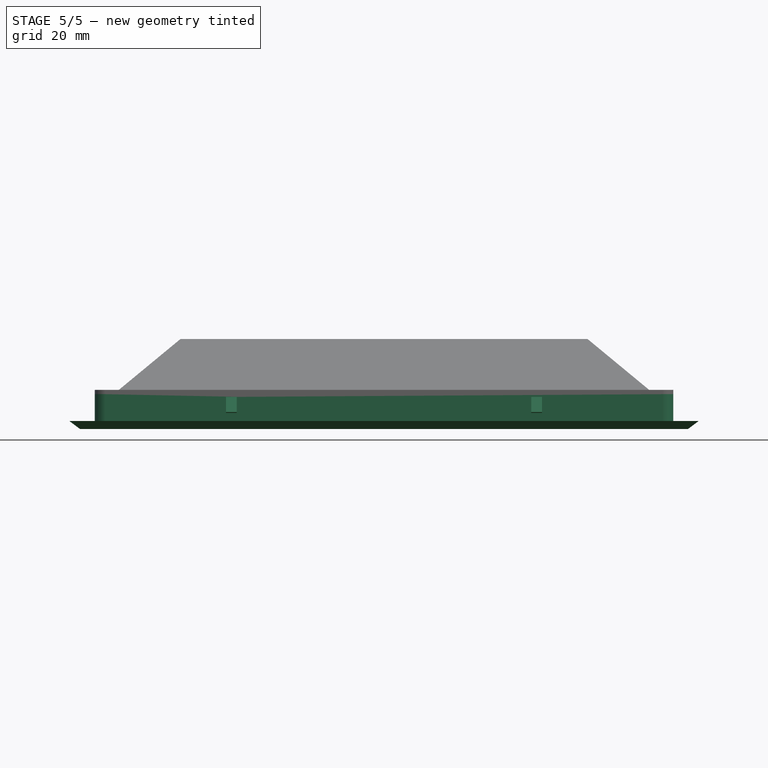
[diagram: stage 5 of 5 — front view after this stage's code; geometry added in this stage tinted green]
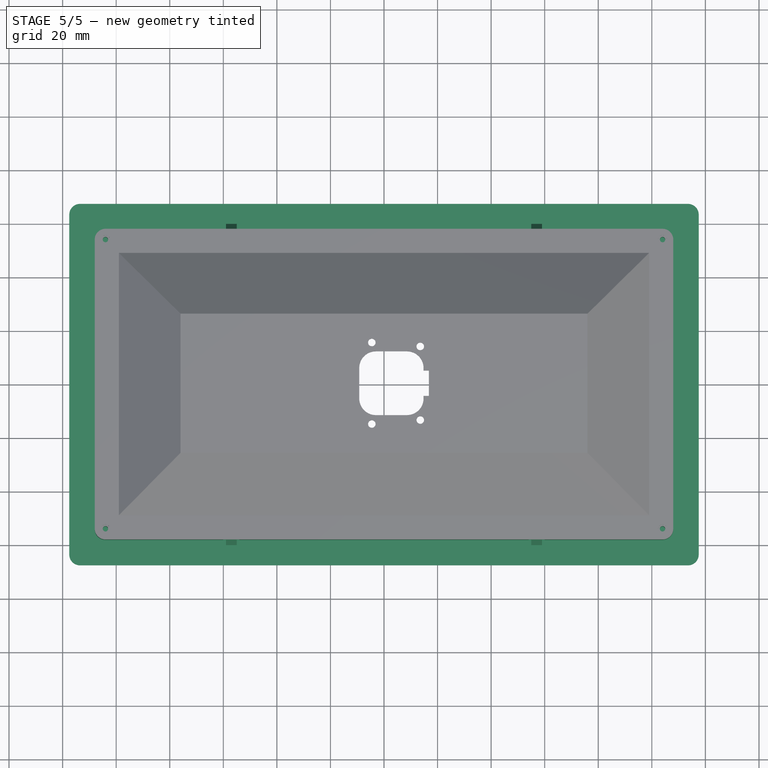
[diagram: stage 5 of 5 — top view after this stage's code; geometry added in this stage tinted green]
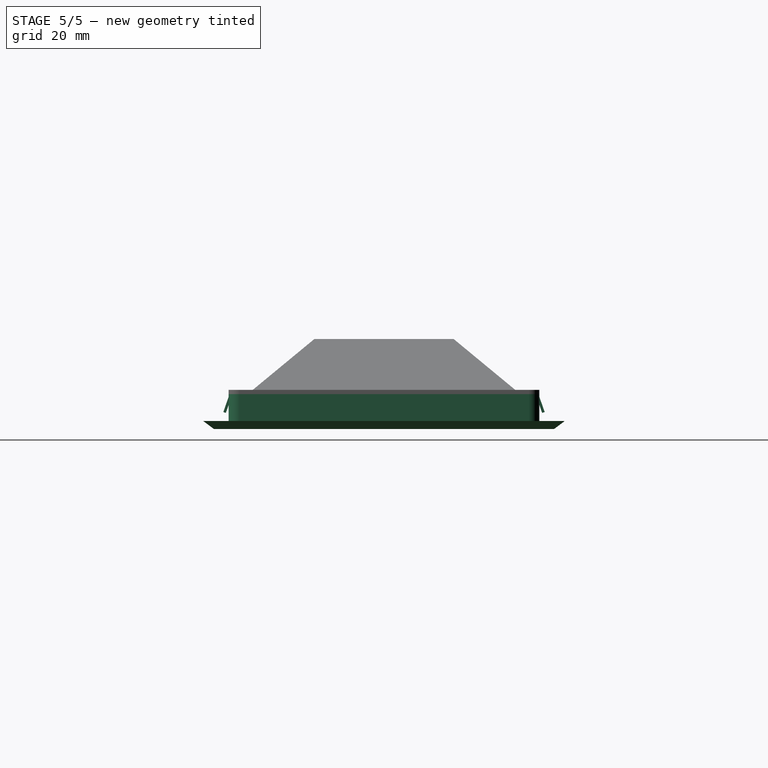
[diagram: stage 5 of 5 — right view after this stage's code; geometry added in this stage tinted green]
FEATURE [Part::FeaturePython] enclosure_front_01  # a2plus imported part (geometry in sourceFile) (typed FeaturePython)
  Placement = pos=(0,0,-21) rot=(0,0,1;0rad)
  fixedPosition = true
  sourceFile = <userpath>/uw/display/hw/enclosure_front.fcstd
  timeLastImport = 1.48481e+09
  updateColors = true
FEATURE [Part::MultiFuse] Fusion002
  Shapes = -> [Pad004,Pad005]
FEATURE [PartDesign::Fillet] Fillet
  Base = -> Fusion002 [Edge54,Edge58,Edge112,Edge116,Edge25,Edge29,Edge87,Edge83]
  Radius = 3
FEATURE [Part::Cut] Cut001
  Base = -> Fillet
  Tool = -> Pad006
FEATURE [Part::MultiFuse] Fusion004
  Shapes = -> [Cut,Cut001]
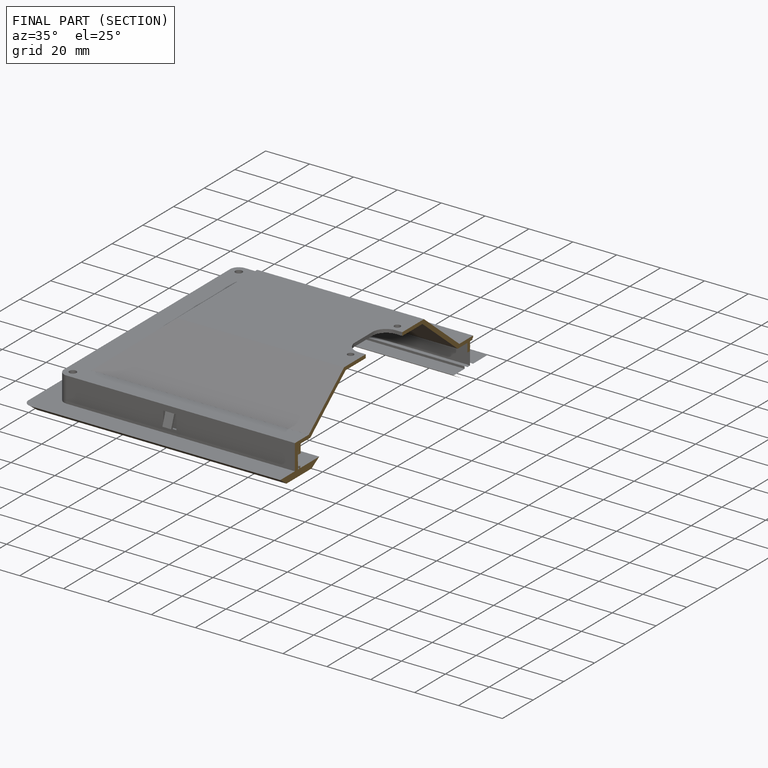
[diagram: finished part — half-section view (interior)]
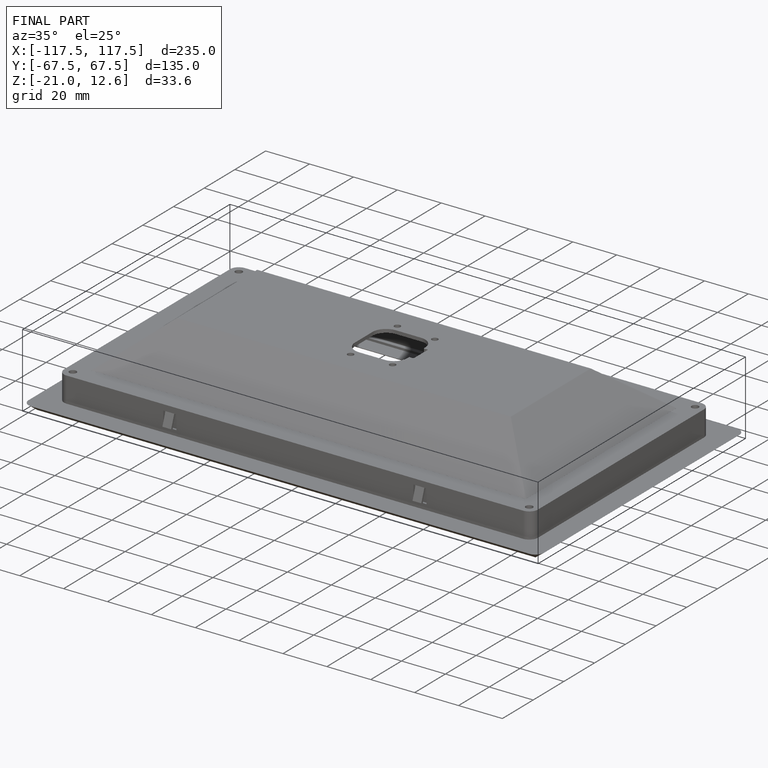
[diagram: finished part — iso view with bounding-box wireframe]
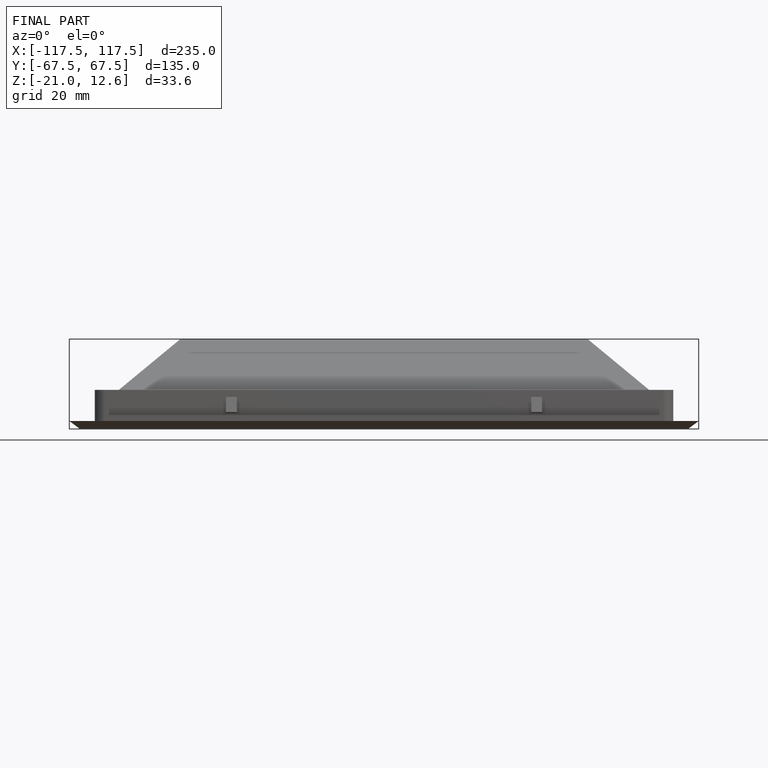
[diagram: finished part — front view with bounding-box wireframe]
